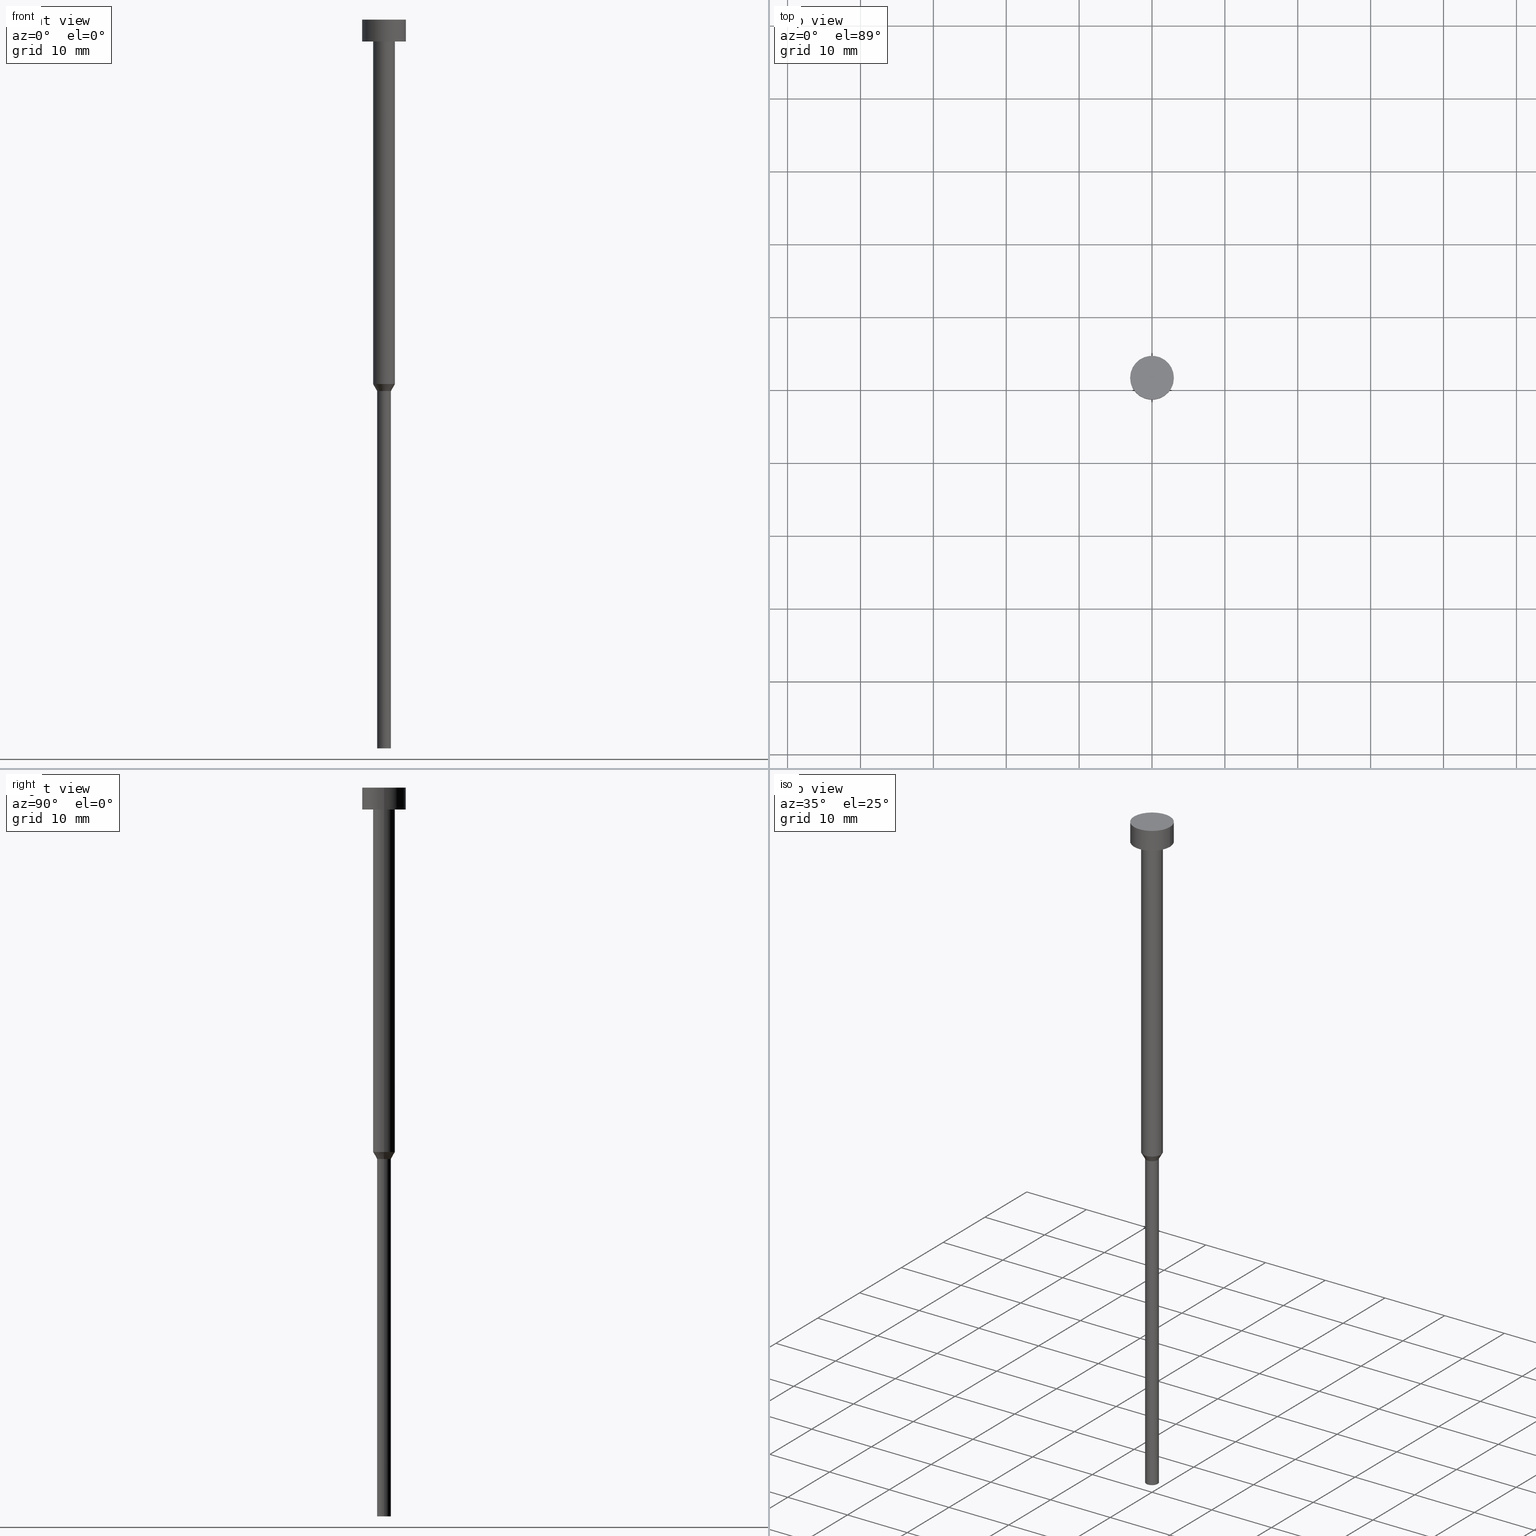
[diagram: canonical four-view strip — front | top / right | iso, engineering-drawing reading convention]
A machine part, canonical four-view strip (front | top / right | iso — engineering-drawing reading convention). The complete STEP part file that produces these views, byte-faithful:
ISO-10303-21;
HEADER;
FILE_DESCRIPTION (( 'STEP AP203' ),
    '1' );
FILE_NAME ('94b6.STEP',
    '2023-02-13T10:56:18',
    ( '' ),
    ( '' ),
    'SwSTEP 2.0',
    'SolidWorks 2019',
    '' );
FILE_SCHEMA (( 'CONFIG_CONTROL_DESIGN' ));
ENDSEC;

DATA;
#1 = CARTESIAN_POINT ( 'NONE',  ( 0.000000000000000000, 0.000000000000000000, -50.00000000000000000 ) ) ;
#2 = CARTESIAN_POINT ( 'NONE',  ( 0.000000000000000000, 0.000000000000000000, -1.836970198721029934E-16 ) ) ;
#3 = DIRECTION ( 'NONE',  ( 0.000000000000000000, 0.000000000000000000, -1.000000000000000000 ) ) ;
#4 = DIRECTION ( 'NONE',  ( -0.000000000000000000, -0.000000000000000000, 1.000000000000000000 ) ) ;
#5 = LOCAL_TIME ( 11, 56, 18.00000000000000000, #7 ) ;
#6 = CIRCLE ( 'NONE', #79, 3.000000000000000000 ) ;
#7 = COORDINATED_UNIVERSAL_TIME_OFFSET ( 1, 0, .AHEAD. ) ;
#8 = ORIENTED_EDGE ( 'NONE', *, *, #216, .F. ) ;
#9 = COORDINATED_UNIVERSAL_TIME_OFFSET ( 1, 0, .AHEAD. ) ;
#10 = ORIENTED_EDGE ( 'NONE', *, *, #349, .T. ) ;
#11 = ORIENTED_EDGE ( 'NONE', *, *, #267, .T. ) ;
#12 = AXIS2_PLACEMENT_3D ( 'NONE', #1, #112, #326 ) ;
#13 = CALENDAR_DATE ( 2023, 13, 2 ) ;
#14 = ADVANCED_FACE ( 'NONE', ( #266 ), #23, .T. ) ;
#15 = ORIENTED_EDGE ( 'NONE', *, *, #20, .T. ) ;
#16 = COORDINATED_UNIVERSAL_TIME_OFFSET ( 1, 0, .AHEAD. ) ;
#17 = ORIENTED_EDGE ( 'NONE', *, *, #230, .F. ) ;
#18 = ORIENTED_EDGE ( 'NONE', *, *, #302, .F. ) ;
#19 = VECTOR ( 'NONE', #59, 1000.000000000000000 ) ;
#20 = EDGE_CURVE ( 'NONE', #177, #344, #212, .T. ) ;
#21 = AXIS2_PLACEMENT_3D ( 'NONE', #243, #355, #188 ) ;
#22 = CARTESIAN_POINT ( 'NONE',  ( 1.500000000000000000, 0.000000000000000000, -50.00000000000000000 ) ) ;
#23 = CYLINDRICAL_SURFACE ( 'NONE', #192, 0.9499999999999999556 ) ;
#24 = APPROVAL_DATE_TIME ( #102, #244 ) ;
#25 = CARTESIAN_POINT ( 'NONE',  ( -0.9500000000000001776, 1.163414459189985929E-16, -50.95262794416287733 ) ) ;
#26 = AXIS2_PLACEMENT_3D ( 'NONE', #136, #115, #196 ) ;
#27 = AXIS2_PLACEMENT_3D ( 'NONE', #185, #76, #213 ) ;
#28 = CARTESIAN_POINT ( 'NONE',  ( 0.000000000000000000, 0.000000000000000000, -100.0000000000000000 ) ) ;
#29 = CYLINDRICAL_SURFACE ( 'NONE', #83, 1.500000000000000000 ) ;
#30 = DIRECTION ( 'NONE',  ( 1.000000000000000000, 0.000000000000000000, 0.000000000000000000 ) ) ;
#31 = AXIS2_PLACEMENT_3D ( 'NONE', #108, #248, #90 ) ;
#32 = CC_DESIGN_APPROVAL ( #330, ( #45 ) ) ;
#33 = CARTESIAN_POINT ( 'NONE',  ( 0.000000000000000000, 0.000000000000000000, 0.000000000000000000 ) ) ;
#34 = DIRECTION ( 'NONE',  ( 1.000000000000000000, 0.000000000000000000, 0.000000000000000000 ) ) ;
#35 = PRODUCT_RELATED_PRODUCT_CATEGORY ( 'detail', '', ( #284 ) ) ;
#36 = DIRECTION ( 'NONE',  ( -0.000000000000000000, -0.000000000000000000, 1.000000000000000000 ) ) ;
#37 = PERSON_AND_ORGANIZATION ( #159, #71 ) ;
#38 = APPROVAL_DATE_TIME ( #277, #140 ) ;
#39 = ORIENTED_EDGE ( 'NONE', *, *, #211, .F. ) ;
#40 = CALENDAR_DATE ( 2023, 13, 2 ) ;
#41 = ORIENTED_EDGE ( 'NONE', *, *, #170, .F. ) ;
#42 = VERTEX_POINT ( 'NONE', #319 ) ;
#43 = CIRCLE ( 'NONE', #345, 1.500000000000000000 ) ;
#44 = CIRCLE ( 'NONE', #21, 3.000000000000000000 ) ;
#45 = PRODUCT_DEFINITION ( 'NEZN�M�', '', #113, #142 ) ;
#46 = DATE_AND_TIME ( #63, #229 ) ;
#47 = EDGE_LOOP ( 'NONE', ( #201, #15, #68, #39 ) ) ;
#48 = SHAPE_DEFINITION_REPRESENTATION ( #298, #265 ) ;
#49 = EDGE_LOOP ( 'NONE', ( #118, #169 ) ) ;
#50 = EDGE_CURVE ( 'NONE', #252, #204, #176, .T. ) ;
#51 = DIRECTION ( 'NONE',  ( 1.000000000000000000, 0.000000000000000000, 0.000000000000000000 ) ) ;
#52 = ORIENTED_EDGE ( 'NONE', *, *, #167, .T. ) ;
#53 = DIRECTION ( 'NONE',  ( -0.000000000000000000, -0.000000000000000000, 1.000000000000000000 ) ) ;
#54 = PLANE ( 'NONE',  #210 ) ;
#55 = CC_DESIGN_SECURITY_CLASSIFICATION ( #158, ( #113 ) ) ;
#56 = CARTESIAN_POINT ( 'NONE',  ( 0.000000000000000000, 0.000000000000000000, -50.00000000000000000 ) ) ;
#57 = DIRECTION ( 'NONE',  ( 0.000000000000000000, -0.000000000000000000, 1.000000000000000000 ) ) ;
#58 = AXIS2_PLACEMENT_3D ( 'NONE', #28, #264, #296 ) ;
#59 = DIRECTION ( 'NONE',  ( -0.000000000000000000, -0.000000000000000000, 1.000000000000000000 ) ) ;
#60 = FACE_OUTER_BOUND ( 'NONE', #233, .T. ) ;
#61 = CC_DESIGN_DATE_AND_TIME_ASSIGNMENT ( #226, #232, ( #158 ) ) ;
#62 = FACE_OUTER_BOUND ( 'NONE', #98, .T. ) ;
#63 = CALENDAR_DATE ( 2023, 13, 2 ) ;
#64 = AXIS2_PLACEMENT_3D ( 'NONE', #33, #36, #161 ) ;
#65 = ORIENTED_EDGE ( 'NONE', *, *, #313, .F. ) ;
#66 = PERSON_AND_ORGANIZATION_ROLE ( 'classification_officer' ) ;
#67 = ORIENTED_EDGE ( 'NONE', *, *, #104, .F. ) ;
#68 = ORIENTED_EDGE ( 'NONE', *, *, #318, .F. ) ;
#69 = APPLICATION_PROTOCOL_DEFINITION ( 'international standard', 'config_control_design', 1994, #72 ) ;
#70 = VERTEX_POINT ( 'NONE', #352 ) ;
#71 = ORGANIZATION ( 'NEUR�EN�', 'NEUR�EN�', '' ) ;
#72 = APPLICATION_CONTEXT ( 'configuration controlled 3d designs of mechanical parts and assemblies' ) ;
#73 = ADVANCED_FACE ( 'NONE', ( #320 ), #291, .T. ) ;
#74 = ORIENTED_EDGE ( 'NONE', *, *, #205, .F. ) ;
#75 = CARTESIAN_POINT ( 'NONE',  ( -0.9499999999999999556, 1.163414459189985682E-16, 0.000000000000000000 ) ) ;
#76 = DIRECTION ( 'NONE',  ( -0.000000000000000000, -0.000000000000000000, 1.000000000000000000 ) ) ;
#77 = CIRCLE ( 'NONE', #26, 1.500000000000000000 ) ;
#78 = APPROVAL_PERSON_ORGANIZATION ( #125, #244, #280 ) ;
#79 = AXIS2_PLACEMENT_3D ( 'NONE', #178, #348, #294 ) ;
#80 = DIRECTION ( 'NONE',  ( -1.000000000000000000, 0.000000000000000000, -0.000000000000000000 ) ) ;
#81 = DIRECTION ( 'NONE',  ( 1.000000000000000000, 0.000000000000000000, 0.000000000000000000 ) ) ;
#82 = CARTESIAN_POINT ( 'NONE',  ( -3.000000000000000000, 3.673940397442059868E-16, -3.000000000000000888 ) ) ;
#83 = AXIS2_PLACEMENT_3D ( 'NONE', #327, #189, #276 ) ;
#84 =( GEOMETRIC_REPRESENTATION_CONTEXT ( 3 ) GLOBAL_UNCERTAINTY_ASSIGNED_CONTEXT ( ( #260 ) ) GLOBAL_UNIT_ASSIGNED_CONTEXT ( ( #341, #203, #339 ) ) REPRESENTATION_CONTEXT ( 'NONE', 'WORKASPACE' ) );
#85 = FACE_OUTER_BOUND ( 'NONE', #47, .T. ) ;
#86 = DIRECTION ( 'NONE',  ( 1.000000000000000000, 0.000000000000000000, 0.000000000000000000 ) ) ;
#87 = CYLINDRICAL_SURFACE ( 'NONE', #64, 3.000000000000000000 ) ;
#88 = CARTESIAN_POINT ( 'NONE',  ( 0.9499999999999998446, 0.000000000000000000, -100.0000000000000000 ) ) ;
#89 = APPLICATION_CONTEXT ( 'configuration controlled 3d designs of mechanical parts and assemblies' ) ;
#90 = DIRECTION ( 'NONE',  ( 1.000000000000000000, 0.000000000000000000, 0.000000000000000000 ) ) ;
#91 = CARTESIAN_POINT ( 'NONE',  ( 0.000000000000000000, 0.000000000000000000, 0.000000000000000000 ) ) ;
#92 = EDGE_LOOP ( 'NONE', ( #126, #122, #256, #41 ) ) ;
#93 = PERSON_AND_ORGANIZATION ( #159, #71 ) ;
#94 = VECTOR ( 'NONE', #130, 999.9999999999998863 ) ;
#95 = EDGE_LOOP ( 'NONE', ( #67, #52, #11, #254 ) ) ;
#96 = DATE_TIME_ROLE ( 'creation_date' ) ;
#97 = ORIENTED_EDGE ( 'NONE', *, *, #349, .F. ) ;
#98 = EDGE_LOOP ( 'NONE', ( #234, #99 ) ) ;
#99 = ORIENTED_EDGE ( 'NONE', *, *, #167, .F. ) ;
#100 = FACE_OUTER_BOUND ( 'NONE', #107, .T. ) ;
#101 = CARTESIAN_POINT ( 'NONE',  ( 0.000000000000000000, 0.000000000000000000, -3.000000000000000888 ) ) ;
#102 = DATE_AND_TIME ( #150, #207 ) ;
#103 = DIRECTION ( 'NONE',  ( 1.000000000000000000, 0.000000000000000000, 0.000000000000000000 ) ) ;
#104 = EDGE_CURVE ( 'NONE', #204, #177, #347, .T. ) ;
#105 = CARTESIAN_POINT ( 'NONE',  ( 0.000000000000000000, -3.000000000000000000, -3.000000000000000888 ) ) ;
#106 = ADVANCED_FACE ( 'NONE', ( #350 ), #156, .T. ) ;
#107 = EDGE_LOOP ( 'NONE', ( #199, #97 ) ) ;
#108 = CARTESIAN_POINT ( 'NONE',  ( 0.000000000000000000, 0.000000000000000000, -50.95262794416287733 ) ) ;
#109 = CIRCLE ( 'NONE', #31, 0.9500000000000000666 ) ;
#110 = CYLINDRICAL_SURFACE ( 'NONE', #308, 0.9499999999999999556 ) ;
#111 = LINE ( 'NONE', #190, #279 ) ;
#112 = DIRECTION ( 'NONE',  ( -0.000000000000000000, -0.000000000000000000, 1.000000000000000000 ) ) ;
#113 = PRODUCT_DEFINITION_FORMATION_WITH_SPECIFIED_SOURCE ( 'LIBOVOLN�', '', #284, .NOT_KNOWN. ) ;
#114 = VECTOR ( 'NONE', #317, 1000.000000000000000 ) ;
#115 = DIRECTION ( 'NONE',  ( -0.000000000000000000, -0.000000000000000000, 1.000000000000000000 ) ) ;
#116 = EDGE_CURVE ( 'NONE', #334, #227, #6, .T. ) ;
#117 = PERSON_AND_ORGANIZATION ( #159, #71 ) ;
#118 = ORIENTED_EDGE ( 'NONE', *, *, #195, .T. ) ;
#119 = APPROVAL_ROLE ( '' ) ;
#120 = CONICAL_SURFACE ( 'NONE', #12, 1.500000000000000000, 0.5235987755983011471 ) ;
#121 = CC_DESIGN_APPROVAL ( #244, ( #158 ) ) ;
#122 = ORIENTED_EDGE ( 'NONE', *, *, #321, .T. ) ;
#123 = PERSON_AND_ORGANIZATION ( #159, #71 ) ;
#124 = VERTEX_POINT ( 'NONE', #82 ) ;
#125 = PERSON_AND_ORGANIZATION ( #159, #71 ) ;
#126 = ORIENTED_EDGE ( 'NONE', *, *, #181, .T. ) ;
#127 = CARTESIAN_POINT ( 'NONE',  ( 0.000000000000000000, 0.000000000000000000, -3.000000000000000888 ) ) ;
#128 = CC_DESIGN_APPROVAL ( #140, ( #113 ) ) ;
#129 = AXIS2_PLACEMENT_3D ( 'NONE', #133, #215, #103 ) ;
#130 = DIRECTION ( 'NONE',  ( 0.5000000000000019984, 0.000000000000000000, 0.8660254037844375974 ) ) ;
#131 = CARTESIAN_POINT ( 'NONE',  ( -1.500000000000000000, 1.836970198721029934E-16, -50.00000000000000000 ) ) ;
#132 = CARTESIAN_POINT ( 'NONE',  ( 0.000000000000000000, 0.000000000000000000, -3.673940397442059868E-16 ) ) ;
#133 = CARTESIAN_POINT ( 'NONE',  ( 0.000000000000000000, 0.000000000000000000, 0.000000000000000000 ) ) ;
#134 = CARTESIAN_POINT ( 'NONE',  ( 0.000000000000000000, 0.000000000000000000, 0.000000000000000000 ) ) ;
#135 = DIRECTION ( 'NONE',  ( -1.000000000000000000, 0.000000000000000000, -0.000000000000000000 ) ) ;
#136 = CARTESIAN_POINT ( 'NONE',  ( 0.000000000000000000, 0.000000000000000000, -50.00000000000000000 ) ) ;
#137 = CARTESIAN_POINT ( 'NONE',  ( -3.000000000000000000, 3.673940397442059868E-16, 0.000000000000000000 ) ) ;
#138 = CARTESIAN_POINT ( 'NONE',  ( 3.000000000000000000, 0.000000000000000000, -3.673940397442059868E-16 ) ) ;
#139 = SECURITY_CLASSIFICATION_LEVEL ( 'unclassified' ) ;
#140 = APPROVAL ( #147, 'NEUR�EN�' ) ;
#141 = PERSON_AND_ORGANIZATION ( #159, #71 ) ;
#142 = DESIGN_CONTEXT ( 'detailed design', #89, 'design' ) ;
#143 = VERTEX_POINT ( 'NONE', #179 ) ;
#144 = PERSON_AND_ORGANIZATION_ROLE ( 'design_owner' ) ;
#145 = CC_DESIGN_PERSON_AND_ORGANIZATION_ASSIGNMENT ( #93, #173, ( #113 ) ) ;
#146 = ORIENTED_EDGE ( 'NONE', *, *, #205, .T. ) ;
#147 = APPROVAL_STATUS ( 'not_yet_approved' ) ;
#148 = EDGE_LOOP ( 'NONE', ( #315, #312, #74, #65 ) ) ;
#149 = DIRECTION ( 'NONE',  ( -0.000000000000000000, -0.000000000000000000, 1.000000000000000000 ) ) ;
#150 = CALENDAR_DATE ( 2023, 13, 2 ) ;
#151 = LINE ( 'NONE', #22, #94 ) ;
#152 = CIRCLE ( 'NONE', #180, 1.500000000000000000 ) ;
#153 = EDGE_LOOP ( 'NONE', ( #182, #200, #259, #18 ) ) ;
#154 = CC_DESIGN_PERSON_AND_ORGANIZATION_ASSIGNMENT ( #335, #144, ( #284 ) ) ;
#155 = CIRCLE ( 'NONE', #202, 3.000000000000000000 ) ;
#156 = CYLINDRICAL_SURFACE ( 'NONE', #129, 3.000000000000000000 ) ;
#157 = DIRECTION ( 'NONE',  ( 0.000000000000000000, 0.000000000000000000, -1.000000000000000000 ) ) ;
#158 = SECURITY_CLASSIFICATION ( '', '', #139 ) ;
#159 = PERSON ( 'NEUR�EN�', 'NEUR�EN�', 'NEUR�EN�', ('NEUR�EN�'), ('NEUR�EN�'), ('NEUR�EN�') ) ;
#160 = DIRECTION ( 'NONE',  ( 1.000000000000000000, 0.000000000000000000, 0.000000000000000000 ) ) ;
#161 = DIRECTION ( 'NONE',  ( 1.000000000000000000, 0.000000000000000000, 0.000000000000000000 ) ) ;
#162 = FACE_OUTER_BOUND ( 'NONE', #49, .T. ) ;
#163 = ADVANCED_FACE ( 'NONE', ( #186, #100 ), #54, .T. ) ;
#164 = CARTESIAN_POINT ( 'NONE',  ( 3.000000000000000000, 0.000000000000000000, -3.000000000000000888 ) ) ;
#165 = CARTESIAN_POINT ( 'NONE',  ( -3.000000000000000000, 3.673940397442059868E-16, -3.673940397442059868E-16 ) ) ;
#166 = DIRECTION ( 'NONE',  ( 1.000000000000000000, 0.000000000000000000, 0.000000000000000000 ) ) ;
#167 = EDGE_CURVE ( 'NONE', #204, #252, #197, .T. ) ;
#168 = CALENDAR_DATE ( 2023, 13, 2 ) ;
#169 = ORIENTED_EDGE ( 'NONE', *, *, #116, .T. ) ;
#170 = EDGE_CURVE ( 'NONE', #261, #227, #268, .T. ) ;
#171 = PERSON_AND_ORGANIZATION_ROLE ( 'creator' ) ;
#172 = ORIENTED_EDGE ( 'NONE', *, *, #267, .F. ) ;
#173 = PERSON_AND_ORGANIZATION_ROLE ( 'creator' ) ;
#174 = VERTEX_POINT ( 'NONE', #262 ) ;
#175 = MECHANICAL_CONTEXT ( 'NONE', #72, 'mechanical' ) ;
#176 = CIRCLE ( 'NONE', #338, 0.9499999999999998446 ) ;
#177 = VERTEX_POINT ( 'NONE', #25 ) ;
#178 = CARTESIAN_POINT ( 'NONE',  ( 0.000000000000000000, 0.000000000000000000, -3.673940397442059868E-16 ) ) ;
#179 = CARTESIAN_POINT ( 'NONE',  ( 1.500000000000000000, 0.000000000000000000, -3.000000000000000888 ) ) ;
#180 = AXIS2_PLACEMENT_3D ( 'NONE', #56, #4, #34 ) ;
#181 = EDGE_CURVE ( 'NONE', #261, #124, #155, .T. ) ;
#182 = ORIENTED_EDGE ( 'NONE', *, *, #20, .F. ) ;
#183 = CC_DESIGN_PERSON_AND_ORGANIZATION_ASSIGNMENT ( #117, #66, ( #158 ) ) ;
#184 = CIRCLE ( 'NONE', #206, 3.000000000000000000 ) ;
#185 = CARTESIAN_POINT ( 'NONE',  ( 0.000000000000000000, 0.000000000000000000, 0.000000000000000000 ) ) ;
#186 = FACE_BOUND ( 'NONE', #287, .T. ) ;
#187 = AXIS2_PLACEMENT_3D ( 'NONE', #2, #57, #30 ) ;
#188 = DIRECTION ( 'NONE',  ( 1.000000000000000000, 0.000000000000000000, 0.000000000000000000 ) ) ;
#189 = DIRECTION ( 'NONE',  ( -0.000000000000000000, -0.000000000000000000, 1.000000000000000000 ) ) ;
#190 = CARTESIAN_POINT ( 'NONE',  ( 1.500000000000000000, 0.000000000000000000, 0.000000000000000000 ) ) ;
#191 = CIRCLE ( 'NONE', #239, 1.500000000000000000 ) ;
#192 = AXIS2_PLACEMENT_3D ( 'NONE', #292, #53, #81 ) ;
#193 = AXIS2_PLACEMENT_3D ( 'NONE', #328, #194, #160 ) ;
#194 = DIRECTION ( 'NONE',  ( -0.000000000000000000, -0.000000000000000000, 1.000000000000000000 ) ) ;
#195 = EDGE_CURVE ( 'NONE', #227, #334, #184, .T. ) ;
#196 = DIRECTION ( 'NONE',  ( 1.000000000000000000, 0.000000000000000000, 0.000000000000000000 ) ) ;
#197 = CIRCLE ( 'NONE', #58, 0.9499999999999998446 ) ;
#198 = DIRECTION ( 'NONE',  ( 0.000000000000000000, 0.000000000000000000, 1.000000000000000000 ) ) ;
#199 = ORIENTED_EDGE ( 'NONE', *, *, #181, .F. ) ;
#200 = ORIENTED_EDGE ( 'NONE', *, *, #278, .T. ) ;
#201 = ORIENTED_EDGE ( 'NONE', *, *, #353, .T. ) ;
#202 = AXIS2_PLACEMENT_3D ( 'NONE', #127, #354, #290 ) ;
#203 =( NAMED_UNIT ( * ) PLANE_ANGLE_UNIT ( ) SI_UNIT ( $, .RADIAN. ) );
#204 = VERTEX_POINT ( 'NONE', #236 ) ;
#205 = EDGE_CURVE ( 'NONE', #143, #174, #191, .T. ) ;
#206 = AXIS2_PLACEMENT_3D ( 'NONE', #132, #316, #51 ) ;
#207 = LOCAL_TIME ( 11, 56, 18.00000000000000000, #314 ) ;
#208 = CC_DESIGN_PERSON_AND_ORGANIZATION_ASSIGNMENT ( #304, #171, ( #45 ) ) ;
#209 = CARTESIAN_POINT ( 'NONE',  ( 0.000000000000000000, 0.000000000000000000, -3.000000000000000888 ) ) ;
#210 = AXIS2_PLACEMENT_3D ( 'NONE', #105, #157, #80 ) ;
#211 = EDGE_CURVE ( 'NONE', #70, #42, #151, .T. ) ;
#212 = LINE ( 'NONE', #131, #235 ) ;
#213 = DIRECTION ( 'NONE',  ( 1.000000000000000000, 0.000000000000000000, 0.000000000000000000 ) ) ;
#214 = DIRECTION ( 'NONE',  ( -0.5000000000000019984, 6.123233995736790688E-17, 0.8660254037844375974 ) ) ;
#215 = DIRECTION ( 'NONE',  ( -0.000000000000000000, -0.000000000000000000, 1.000000000000000000 ) ) ;
#216 = EDGE_CURVE ( 'NONE', #174, #143, #43, .T. ) ;
#217 = DIRECTION ( 'NONE',  ( -0.000000000000000000, -0.000000000000000000, 1.000000000000000000 ) ) ;
#218 = VECTOR ( 'NONE', #217, 1000.000000000000000 ) ;
#219 = CARTESIAN_POINT ( 'NONE',  ( 0.9499999999999999556, 0.000000000000000000, 0.000000000000000000 ) ) ;
#220 = DIRECTION ( 'NONE',  ( -0.000000000000000000, -0.000000000000000000, 1.000000000000000000 ) ) ;
#221 = DIRECTION ( 'NONE',  ( -0.000000000000000000, -0.000000000000000000, 1.000000000000000000 ) ) ;
#222 = ADVANCED_FACE ( 'NONE', ( #60 ), #29, .T. ) ;
#223 = LINE ( 'NONE', #137, #301 ) ;
#224 = DIRECTION ( 'NONE',  ( -0.000000000000000000, -0.000000000000000000, 1.000000000000000000 ) ) ;
#225 = ORIENTED_EDGE ( 'NONE', *, *, #353, .F. ) ;
#226 = DATE_AND_TIME ( #13, #5 ) ;
#227 = VERTEX_POINT ( 'NONE', #138 ) ;
#228 = AXIS2_PLACEMENT_3D ( 'NONE', #272, #3, #135 ) ;
#229 = LOCAL_TIME ( 11, 56, 18.00000000000000000, #258 ) ;
#230 = EDGE_CURVE ( 'NONE', #344, #174, #299, .T. ) ;
#231 = ORIENTED_EDGE ( 'NONE', *, *, #170, .T. ) ;
#232 = DATE_TIME_ROLE ( 'classification_date' ) ;
#233 = EDGE_LOOP ( 'NONE', ( #17, #288, #336, #8 ) ) ;
#234 = ORIENTED_EDGE ( 'NONE', *, *, #50, .F. ) ;
#235 = VECTOR ( 'NONE', #214, 999.9999999999998863 ) ;
#236 = CARTESIAN_POINT ( 'NONE',  ( -0.9499999999999998446, 1.163414459189985682E-16, -100.0000000000000000 ) ) ;
#237 = CARTESIAN_POINT ( 'NONE',  ( 3.000000000000000000, 0.000000000000000000, 0.000000000000000000 ) ) ;
#238 = DIRECTION ( 'NONE',  ( 1.000000000000000000, 0.000000000000000000, 0.000000000000000000 ) ) ;
#239 = AXIS2_PLACEMENT_3D ( 'NONE', #209, #322, #240 ) ;
#240 = DIRECTION ( 'NONE',  ( 1.000000000000000000, 0.000000000000000000, 0.000000000000000000 ) ) ;
#241 = CIRCLE ( 'NONE', #323, 0.9500000000000000666 ) ;
#242 = CARTESIAN_POINT ( 'NONE',  ( 0.000000000000000000, 0.000000000000000000, -100.0000000000000000 ) ) ;
#243 = CARTESIAN_POINT ( 'NONE',  ( 0.000000000000000000, 0.000000000000000000, -3.000000000000000888 ) ) ;
#244 = APPROVAL ( #333, 'NEUR�EN�' ) ;
#245 = FACE_OUTER_BOUND ( 'NONE', #153, .T. ) ;
#246 = CARTESIAN_POINT ( 'NONE',  ( -1.500000000000000000, 1.836970198721029934E-16, 0.000000000000000000 ) ) ;
#247 = MANIFOLD_SOLID_BREP ( 'Rotovat1', #257 ) ;
#248 = DIRECTION ( 'NONE',  ( -0.000000000000000000, -0.000000000000000000, 1.000000000000000000 ) ) ;
#249 = DIRECTION ( 'NONE',  ( -0.000000000000000000, -0.000000000000000000, 1.000000000000000000 ) ) ;
#250 = ADVANCED_FACE ( 'NONE', ( #162 ), #273, .T. ) ;
#251 = DATE_AND_TIME ( #40, #337 ) ;
#252 = VERTEX_POINT ( 'NONE', #88 ) ;
#253 = APPROVAL_DATE_TIME ( #46, #330 ) ;
#254 = ORIENTED_EDGE ( 'NONE', *, *, #278, .F. ) ;
#255 = APPROVAL_STATUS ( 'not_yet_approved' ) ;
#256 = ORIENTED_EDGE ( 'NONE', *, *, #195, .F. ) ;
#257 = CLOSED_SHELL ( 'NONE', ( #106, #73, #332, #275, #285, #14, #293, #222, #163, #263, #250 ) ) ;
#258 = COORDINATED_UNIVERSAL_TIME_OFFSET ( 1, 0, .AHEAD. ) ;
#259 = ORIENTED_EDGE ( 'NONE', *, *, #211, .T. ) ;
#260 = UNCERTAINTY_MEASURE_WITH_UNIT (LENGTH_MEASURE( 1.000000000000000082E-05 ), #341, 'distance_accuracy_value', 'NONE');
#261 = VERTEX_POINT ( 'NONE', #164 ) ;
#262 = CARTESIAN_POINT ( 'NONE',  ( -1.500000000000000000, 1.836970198721029934E-16, -3.000000000000000888 ) ) ;
#263 = ADVANCED_FACE ( 'NONE', ( #324 ), #87, .T. ) ;
#264 = DIRECTION ( 'NONE',  ( -0.000000000000000000, -0.000000000000000000, 1.000000000000000000 ) ) ;
#265 = ADVANCED_BREP_SHAPE_REPRESENTATION ( '94b6', ( #247, #295 ), #84 ) ;
#266 = FACE_OUTER_BOUND ( 'NONE', #95, .T. ) ;
#267 = EDGE_CURVE ( 'NONE', #252, #70, #331, .T. ) ;
#268 = LINE ( 'NONE', #237, #311 ) ;
#269 = LOCAL_TIME ( 11, 56, 18.00000000000000000, #16 ) ;
#270 = DIRECTION ( 'NONE',  ( -0.000000000000000000, -0.000000000000000000, 1.000000000000000000 ) ) ;
#271 = CARTESIAN_POINT ( 'NONE',  ( -1.500000000000000000, 1.836970198721029934E-16, -50.00000000000000000 ) ) ;
#272 = CARTESIAN_POINT ( 'NONE',  ( 0.000000000000000000, 0.000000000000000000, -100.0000000000000000 ) ) ;
#273 = PLANE ( 'NONE',  #187 ) ;
#274 = FACE_OUTER_BOUND ( 'NONE', #342, .T. ) ;
#275 = ADVANCED_FACE ( 'NONE', ( #274 ), #110, .T. ) ;
#276 = DIRECTION ( 'NONE',  ( 1.000000000000000000, 0.000000000000000000, 0.000000000000000000 ) ) ;
#277 = DATE_AND_TIME ( #168, #269 ) ;
#278 = EDGE_CURVE ( 'NONE', #177, #70, #109, .T. ) ;
#279 = VECTOR ( 'NONE', #300, 1000.000000000000000 ) ;
#280 = APPROVAL_ROLE ( '' ) ;
#281 = ORIENTED_EDGE ( 'NONE', *, *, #116, .F. ) ;
#282 = PERSON_AND_ORGANIZATION_ROLE ( 'design_supplier' ) ;
#283 = ORIENTED_EDGE ( 'NONE', *, *, #104, .T. ) ;
#284 = PRODUCT ( '94b6', '94b6', '', ( #175 ) ) ;
#285 = ADVANCED_FACE ( 'NONE', ( #62 ), #303, .T. ) ;
#286 = APPLICATION_PROTOCOL_DEFINITION ( 'international standard', 'config_control_design', 1994, #89 ) ;
#287 = EDGE_LOOP ( 'NONE', ( #146, #340 ) ) ;
#288 = ORIENTED_EDGE ( 'NONE', *, *, #302, .T. ) ;
#289 = ORIENTED_EDGE ( 'NONE', *, *, #321, .F. ) ;
#290 = DIRECTION ( 'NONE',  ( 1.000000000000000000, 0.000000000000000000, 0.000000000000000000 ) ) ;
#291 = CYLINDRICAL_SURFACE ( 'NONE', #27, 1.500000000000000000 ) ;
#292 = CARTESIAN_POINT ( 'NONE',  ( 0.000000000000000000, 0.000000000000000000, 0.000000000000000000 ) ) ;
#293 = ADVANCED_FACE ( 'NONE', ( #245 ), #120, .T. ) ;
#294 = DIRECTION ( 'NONE',  ( 1.000000000000000000, 0.000000000000000000, 0.000000000000000000 ) ) ;
#295 = AXIS2_PLACEMENT_3D ( 'NONE', #91, #198, #343 ) ;
#296 = DIRECTION ( 'NONE',  ( 1.000000000000000000, 0.000000000000000000, 0.000000000000000000 ) ) ;
#297 = DIRECTION ( 'NONE',  ( 1.000000000000000000, 0.000000000000000000, 0.000000000000000000 ) ) ;
#298 = PRODUCT_DEFINITION_SHAPE ( 'NONE', 'NONE',  #45 ) ;
#299 = LINE ( 'NONE', #246, #19 ) ;
#300 = DIRECTION ( 'NONE',  ( -0.000000000000000000, -0.000000000000000000, 1.000000000000000000 ) ) ;
#301 = VECTOR ( 'NONE', #221, 1000.000000000000000 ) ;
#302 = EDGE_CURVE ( 'NONE', #344, #42, #77, .T. ) ;
#303 = PLANE ( 'NONE',  #228 ) ;
#304 = PERSON_AND_ORGANIZATION ( #159, #71 ) ;
#305 = CC_DESIGN_PERSON_AND_ORGANIZATION_ASSIGNMENT ( #37, #282, ( #113 ) ) ;
#306 = APPROVAL_ROLE ( '' ) ;
#307 = EDGE_LOOP ( 'NONE', ( #289, #10, #231, #281 ) ) ;
#308 = AXIS2_PLACEMENT_3D ( 'NONE', #134, #249, #297 ) ;
#309 = CARTESIAN_POINT ( 'NONE',  ( 0.000000000000000000, 0.000000000000000000, -50.95262794416287733 ) ) ;
#310 = ORIENTED_EDGE ( 'NONE', *, *, #50, .T. ) ;
#311 = VECTOR ( 'NONE', #149, 1000.000000000000000 ) ;
#312 = ORIENTED_EDGE ( 'NONE', *, *, #230, .T. ) ;
#313 = EDGE_CURVE ( 'NONE', #42, #143, #111, .T. ) ;
#314 = COORDINATED_UNIVERSAL_TIME_OFFSET ( 1, 0, .AHEAD. ) ;
#315 = ORIENTED_EDGE ( 'NONE', *, *, #318, .T. ) ;
#316 = DIRECTION ( 'NONE',  ( -0.000000000000000000, -0.000000000000000000, 1.000000000000000000 ) ) ;
#317 = DIRECTION ( 'NONE',  ( -0.000000000000000000, -0.000000000000000000, 1.000000000000000000 ) ) ;
#318 = EDGE_CURVE ( 'NONE', #42, #344, #152, .T. ) ;
#319 = CARTESIAN_POINT ( 'NONE',  ( 1.500000000000000000, 0.000000000000000000, -50.00000000000000000 ) ) ;
#320 = FACE_OUTER_BOUND ( 'NONE', #148, .T. ) ;
#321 = EDGE_CURVE ( 'NONE', #124, #334, #223, .T. ) ;
#322 = DIRECTION ( 'NONE',  ( -0.000000000000000000, -0.000000000000000000, 1.000000000000000000 ) ) ;
#323 = AXIS2_PLACEMENT_3D ( 'NONE', #309, #224, #166 ) ;
#324 = FACE_OUTER_BOUND ( 'NONE', #307, .T. ) ;
#325 = CC_DESIGN_DATE_AND_TIME_ASSIGNMENT ( #251, #96, ( #45 ) ) ;
#326 = DIRECTION ( 'NONE',  ( 1.000000000000000000, 0.000000000000000000, 0.000000000000000000 ) ) ;
#327 = CARTESIAN_POINT ( 'NONE',  ( 0.000000000000000000, 0.000000000000000000, 0.000000000000000000 ) ) ;
#328 = CARTESIAN_POINT ( 'NONE',  ( 0.000000000000000000, 0.000000000000000000, -50.00000000000000000 ) ) ;
#329 = APPROVAL_PERSON_ORGANIZATION ( #123, #330, #119 ) ;
#330 = APPROVAL ( #255, 'NEUR�EN�' ) ;
#331 = LINE ( 'NONE', #219, #218 ) ;
#332 = ADVANCED_FACE ( 'NONE', ( #85 ), #351, .T. ) ;
#333 = APPROVAL_STATUS ( 'not_yet_approved' ) ;
#334 = VERTEX_POINT ( 'NONE', #165 ) ;
#335 = PERSON_AND_ORGANIZATION ( #159, #71 ) ;
#336 = ORIENTED_EDGE ( 'NONE', *, *, #313, .T. ) ;
#337 = LOCAL_TIME ( 11, 56, 18.00000000000000000, #9 ) ;
#338 = AXIS2_PLACEMENT_3D ( 'NONE', #242, #270, #238 ) ;
#339 =( NAMED_UNIT ( * ) SI_UNIT ( $, .STERADIAN. ) SOLID_ANGLE_UNIT ( ) );
#340 = ORIENTED_EDGE ( 'NONE', *, *, #216, .T. ) ;
#341 =( LENGTH_UNIT ( ) NAMED_UNIT ( * ) SI_UNIT ( .MILLI., .METRE. ) );
#342 = EDGE_LOOP ( 'NONE', ( #310, #283, #225, #172 ) ) ;
#343 = DIRECTION ( 'NONE',  ( 1.000000000000000000, 0.000000000000000000, 0.000000000000000000 ) ) ;
#344 = VERTEX_POINT ( 'NONE', #271 ) ;
#345 = AXIS2_PLACEMENT_3D ( 'NONE', #101, #220, #86 ) ;
#346 = APPROVAL_PERSON_ORGANIZATION ( #141, #140, #306 ) ;
#347 = LINE ( 'NONE', #75, #114 ) ;
#348 = DIRECTION ( 'NONE',  ( -0.000000000000000000, -0.000000000000000000, 1.000000000000000000 ) ) ;
#349 = EDGE_CURVE ( 'NONE', #124, #261, #44, .T. ) ;
#350 = FACE_OUTER_BOUND ( 'NONE', #92, .T. ) ;
#351 = CONICAL_SURFACE ( 'NONE', #193, 1.500000000000000000, 0.5235987755983011471 ) ;
#352 = CARTESIAN_POINT ( 'NONE',  ( 0.9500000000000000666, 0.000000000000000000, -50.95262794416287733 ) ) ;
#353 = EDGE_CURVE ( 'NONE', #70, #177, #241, .T. ) ;
#354 = DIRECTION ( 'NONE',  ( -0.000000000000000000, -0.000000000000000000, 1.000000000000000000 ) ) ;
#355 = DIRECTION ( 'NONE',  ( -0.000000000000000000, -0.000000000000000000, 1.000000000000000000 ) ) ;
ENDSEC;
END-ISO-10303-21;
